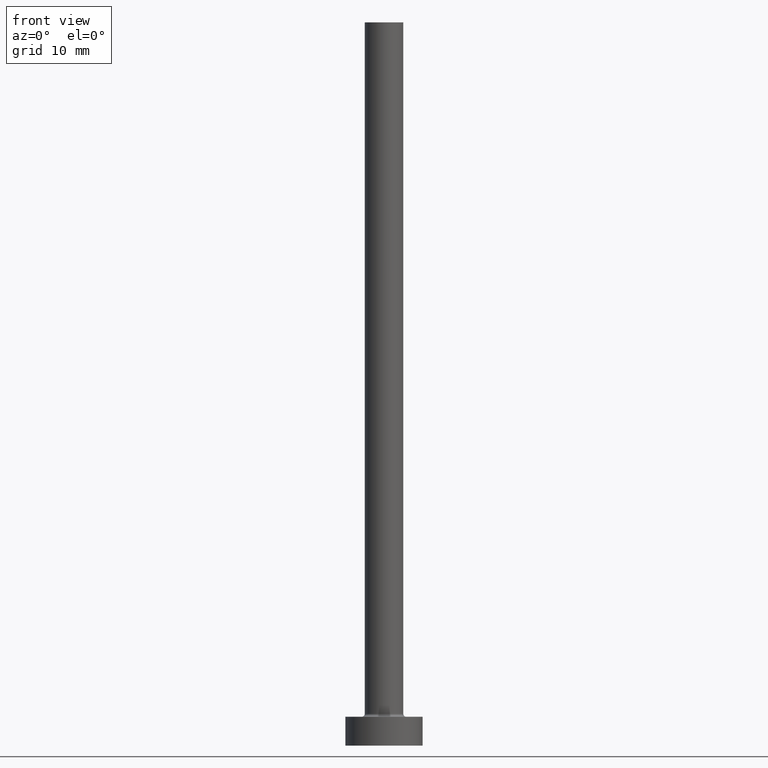
[diagram: clean part render]
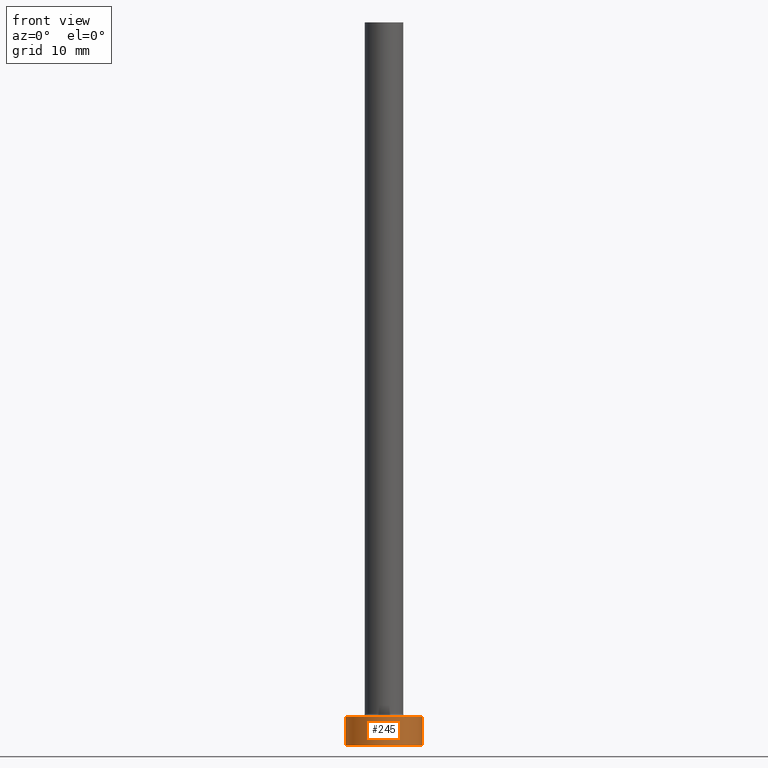
[diagram: same view with one face highlighted and labeled with its STEP entity id]
A machine part, front view. The second image highlights one B-rep face of the part: STEP entity #245.
In plain terms, the highlighted cylindrical surface (partial cylindrical patch) has radius 4 mm, axis along (-0, -0, -1).
Its self-contained STEP definition (entity closure, byte-faithful):
#11 = DIRECTION ( 'NONE',  ( 0.000000000000000000, 0.000000000000000000, 1.000000000000000000 ) ) ;
#28 = EDGE_CURVE ( 'NONE', #446, #59, #432, .T. ) ;
#34 = CIRCLE ( 'NONE', #274, 4.000000000000000000 ) ;
#59 = VERTEX_POINT ( 'NONE', #401 ) ;
#80 = DIRECTION ( 'NONE',  ( 0.000000000000000000, 0.000000000000000000, 1.000000000000000000 ) ) ;
#94 = VECTOR ( 'NONE', #306, 1000.000000000000000 ) ;
#111 = DIRECTION ( 'NONE',  ( -0.000000000000000000, -0.000000000000000000, -1.000000000000000000 ) ) ;
#117 = DIRECTION ( 'NONE',  ( 1.000000000000000000, 0.000000000000000000, 0.000000000000000000 ) ) ;
#118 = CYLINDRICAL_SURFACE ( 'NONE', #213, 4.000000000000000000 ) ;
#125 = ORIENTED_EDGE ( 'NONE', *, *, #288, .T. ) ;
#126 = CARTESIAN_POINT ( 'NONE',  ( 0.000000000000000000, 0.000000000000000000, 3.000000000000000000 ) ) ;
#157 = CARTESIAN_POINT ( 'NONE',  ( 0.000000000000000000, 0.000000000000000000, 0.000000000000000000 ) ) ;
#187 = VECTOR ( 'NONE', #111, 1000.000000000000000 ) ;
#194 = FACE_OUTER_BOUND ( 'NONE', #272, .T. ) ;
#200 = ORIENTED_EDGE ( 'NONE', *, *, #28, .F. ) ;
#213 = AXIS2_PLACEMENT_3D ( 'NONE', #126, #235, #382 ) ;
#214 = VERTEX_POINT ( 'NONE', #414 ) ;
#232 = CARTESIAN_POINT ( 'NONE',  ( 0.000000000000000000, 0.000000000000000000, 3.000000000000000000 ) ) ;
#233 = CARTESIAN_POINT ( 'NONE',  ( -4.000000000000000000, 0.000000000000000000, 0.000000000000000000 ) ) ;
#235 = DIRECTION ( 'NONE',  ( -0.000000000000000000, -0.000000000000000000, -1.000000000000000000 ) ) ;
#245 = ADVANCED_FACE ( 'NONE', ( #194 ), #118, .T. ) ;
#248 = AXIS2_PLACEMENT_3D ( 'NONE', #232, #11, #295 ) ;
#249 = VERTEX_POINT ( 'NONE', #233 ) ;
#253 = CARTESIAN_POINT ( 'NONE',  ( 4.000000000000000000, 4.898587196589412829E-16, 3.000000000000000000 ) ) ;
#272 = EDGE_LOOP ( 'NONE', ( #200, #420, #455, #125 ) ) ;
#274 = AXIS2_PLACEMENT_3D ( 'NONE', #157, #80, #117 ) ;
#288 = EDGE_CURVE ( 'NONE', #249, #59, #34, .T. ) ;
#295 = DIRECTION ( 'NONE',  ( 1.000000000000000000, 0.000000000000000000, 0.000000000000000000 ) ) ;
#306 = DIRECTION ( 'NONE',  ( -0.000000000000000000, -0.000000000000000000, -1.000000000000000000 ) ) ;
#321 = CIRCLE ( 'NONE', #248, 4.000000000000000000 ) ;
#331 = CARTESIAN_POINT ( 'NONE',  ( -4.000000000000000000, 0.000000000000000000, 3.000000000000000000 ) ) ;
#382 = DIRECTION ( 'NONE',  ( -1.000000000000000000, 0.000000000000000000, 0.000000000000000000 ) ) ;
#384 = EDGE_CURVE ( 'NONE', #214, #446, #321, .T. ) ;
#399 = CARTESIAN_POINT ( 'NONE',  ( 4.000000000000000000, 4.898587196589412829E-16, 3.000000000000000000 ) ) ;
#401 = CARTESIAN_POINT ( 'NONE',  ( 4.000000000000000000, 4.898587196589412829E-16, 0.000000000000000000 ) ) ;
#414 = CARTESIAN_POINT ( 'NONE',  ( -4.000000000000000000, 0.000000000000000000, 3.000000000000000000 ) ) ;
#420 = ORIENTED_EDGE ( 'NONE', *, *, #384, .F. ) ;
#431 = LINE ( 'NONE', #331, #94 ) ;
#432 = LINE ( 'NONE', #253, #187 ) ;
#436 = EDGE_CURVE ( 'NONE', #214, #249, #431, .T. ) ;
#446 = VERTEX_POINT ( 'NONE', #399 ) ;
#455 = ORIENTED_EDGE ( 'NONE', *, *, #436, .T. ) ;